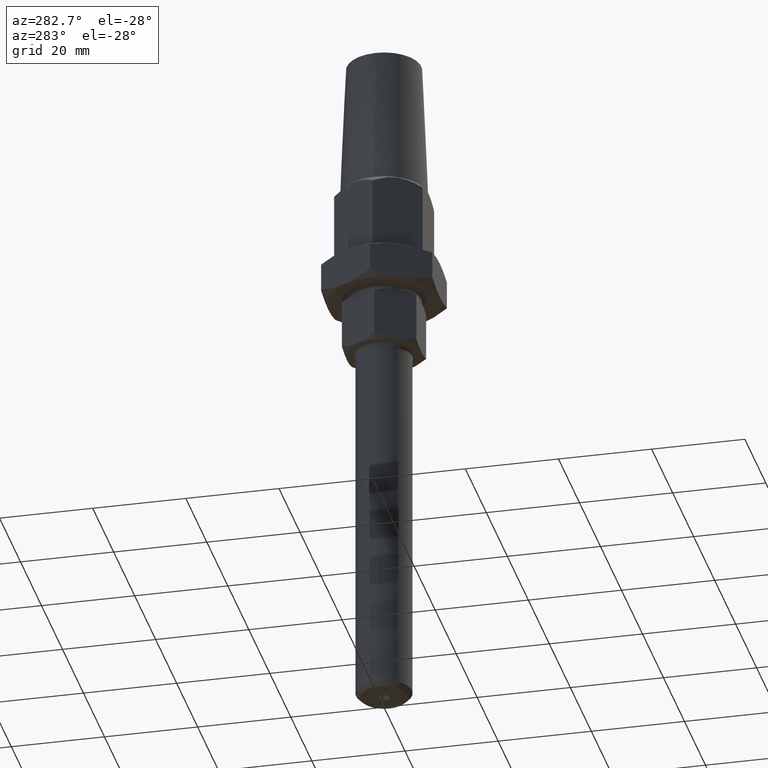
[diagram: clean part render]
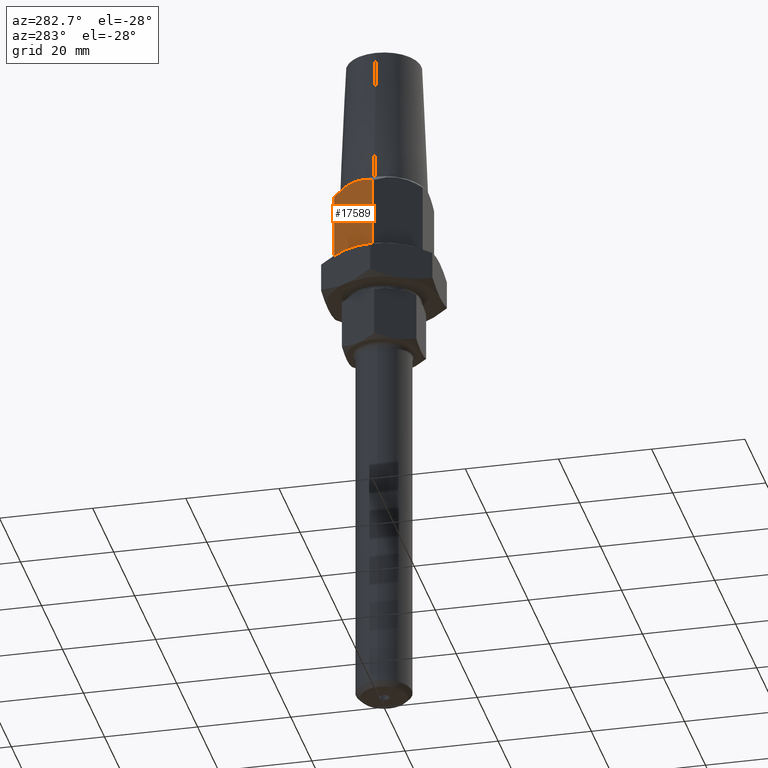
[diagram: same view with one face highlighted and labeled with its STEP entity id]
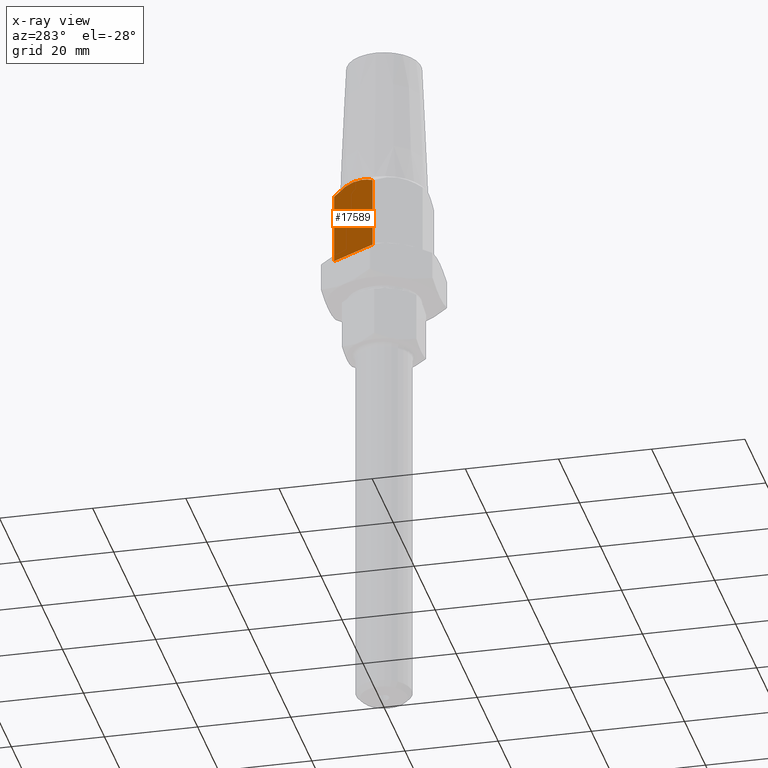
[diagram: x-ray of the same camera — body ghosted, the highlighted face saturated]
A machine part, auxiliary view. The second image highlights one B-rep face of the part: STEP entity #17589.
The next image is the same camera in x-ray: the body ghosted, the highlighted face saturated — about 0% of this face is hidden behind the body in this view.
In plain terms, the highlighted planar face has unit normal (0.866, -0.5, 0).
Its self-contained STEP definition (entity closure, byte-faithful):
#333 = LINE ( 'NONE', #15755, #10039 ) ;
#335 = ORIENTED_EDGE ( 'NONE', *, *, #13596, .T. ) ;
#1156 = CARTESIAN_POINT ( 'NONE',  ( -5.913371250152321700, 8.757740550719084600, 15.70888857824800900 ) ) ;
#1289 = CARTESIAN_POINT ( 'NONE',  ( -8.695956990923255200, 3.938160671287144400, 16.75201385850177300 ) ) ;
#1435 = DIRECTION ( 'NONE',  ( -0.0000000000000000000, -0.0000000000000000000, -1.000000000000000000 ) ) ;
#1998 = ORIENTED_EDGE ( 'NONE', *, *, #7516, .F. ) ;
#2664 = CARTESIAN_POINT ( 'NONE',  ( -5.484827557301442400, 9.499999999999996400, 0.0000000000000000000 ) ) ;
#2859 = CARTESIAN_POINT ( 'NONE',  ( -7.734875335119025600, 5.602802929362496800, 16.71048072191473100 ) ) ;
#2990 = DIRECTION ( 'NONE',  ( 0.5000000000000001100, 0.8660254037844386000, 0.0000000000000000000 ) ) ;
#3631 = CARTESIAN_POINT ( 'NONE',  ( -10.96965511460288800, -1.681678994262292100E-015, 0.0000000000000000000 ) ) ;
#3859 = FACE_OUTER_BOUND ( 'NONE', #18368, .T. ) ;
#4380 = CARTESIAN_POINT ( 'NONE',  ( -9.166592578208671700, 3.122995922258791100, 16.60701165094236100 ) ) ;
#4579 = ORIENTED_EDGE ( 'NONE', *, *, #8865, .T. ) ;
#5820 = DIRECTION ( 'NONE',  ( 0.8660254037844386000, -0.5000000000000001100, 0.0000000000000000000 ) ) ;
#6078 = DIRECTION ( 'NONE',  ( -0.0000000000000000000, -0.0000000000000000000, -1.000000000000000000 ) ) ;
#6873 = CARTESIAN_POINT ( 'NONE',  ( -5.484827557301442400, 9.499999999999996400, 0.0000000000000000000 ) ) ;
#7219 = CARTESIAN_POINT ( 'NONE',  ( -5.484827557301442400, 9.499999999999996400, 17.00000000000000000 ) ) ;
#7516 = EDGE_CURVE ( 'NONE', #16341, #11873, #10538, .T. ) ;
#7799 = VERTEX_POINT ( 'NONE', #3631 ) ;
#8224 = CARTESIAN_POINT ( 'NONE',  ( -5.484827557301442400, 9.499999999999996400, 15.28034488539712900 ) ) ;
#8316 = CARTESIAN_POINT ( 'NONE',  ( -10.96965511460288800, -1.556458013598361000E-015, 15.28034488539712800 ) ) ;
#8690 = CARTESIAN_POINT ( 'NONE',  ( -7.977740113271946300, 5.182148794232690900, 16.74896088518294600 ) ) ;
#8702 = PLANE ( 'NONE',  #10138 ) ;
#8865 = EDGE_CURVE ( 'NONE', #16341, #15989, #12704, .T. ) ;
#9941 = DIRECTION ( 'NONE',  ( -0.5000000000000001100, -0.8660254037844386000, 0.0000000000000000000 ) ) ;
#10039 = VECTOR ( 'NONE', #1435, 1000.000000000000000 ) ;
#10113 = CARTESIAN_POINT ( 'NONE',  ( -5.484827557301442400, 9.499999999999996400, 17.00000000000000000 ) ) ;
#10138 = AXIS2_PLACEMENT_3D ( 'NONE', #7219, #5820, #2990 ) ;
#10538 = B_SPLINE_CURVE_WITH_KNOTS ( 'NONE', 3,
 ( #8224, #1156, #17228, #14354, #18522, #2859, #8690, #1289, #4380, #15683, #12954, #12891 ),
 .UNSPECIFIED., .F., .F.,
 ( 4, 2, 2, 2, 2, 4 ),
 ( 2.544312669948822500E-007, 0.002833058757995987900, 0.004249460921360483600, 0.005665863084724978900, 0.008498667411453967800, 0.01133147173818295500 ),
 .UNSPECIFIED. ) ;
#11873 = VERTEX_POINT ( 'NONE', #8316 ) ;
#12704 = LINE ( 'NONE', #10113, #14533 ) ;
#12734 = LINE ( 'NONE', #2664, #18083 ) ;
#12891 = CARTESIAN_POINT ( 'NONE',  ( -10.96965511460288800, -1.556458013598361000E-015, 15.28034488539712800 ) ) ;
#12954 = CARTESIAN_POINT ( 'NONE',  ( -10.53858812322459600, 0.7466299305330553700, 15.71141187677551100 ) ) ;
#13596 = EDGE_CURVE ( 'NONE', #15989, #7799, #12734, .T. ) ;
#14296 = EDGE_CURVE ( 'NONE', #11873, #7799, #333, .T. ) ;
#14354 = CARTESIAN_POINT ( 'NONE',  ( -7.032407236050310900, 6.819513367645837000, 16.46371148533898300 ) ) ;
#14533 = VECTOR ( 'NONE', #6078, 1000.000000000000000 ) ;
#14872 = ORIENTED_EDGE ( 'NONE', *, *, #14296, .F. ) ;
#15202 = CARTESIAN_POINT ( 'NONE',  ( -5.484827557301442400, 9.499999999999996400, 15.28034488539712900 ) ) ;
#15683 = CARTESIAN_POINT ( 'NONE',  ( -10.09474281818229200, 1.515392549567242000, 16.08103012005283700 ) ) ;
#15755 = CARTESIAN_POINT ( 'NONE',  ( -10.96965511460288800, -1.681678994262292100E-015, 17.00000000000000000 ) ) ;
#15989 = VERTEX_POINT ( 'NONE', #6873 ) ;
#16341 = VERTEX_POINT ( 'NONE', #15202 ) ;
#17228 = CARTESIAN_POINT ( 'NONE',  ( -6.351581188495194000, 7.998738673127602000, 16.07325596749305800 ) ) ;
#17589 = ADVANCED_FACE ( 'NONE', ( #3859 ), #8702, .F. ) ;
#18083 = VECTOR ( 'NONE', #9941, 1000.000000000000000 ) ;
#18368 = EDGE_LOOP ( 'NONE', ( #1998, #4579, #335, #14872 ) ) ;
#18522 = CARTESIAN_POINT ( 'NONE',  ( -7.263309102867533600, 6.419579602755908000, 16.56757301386822000 ) ) ;